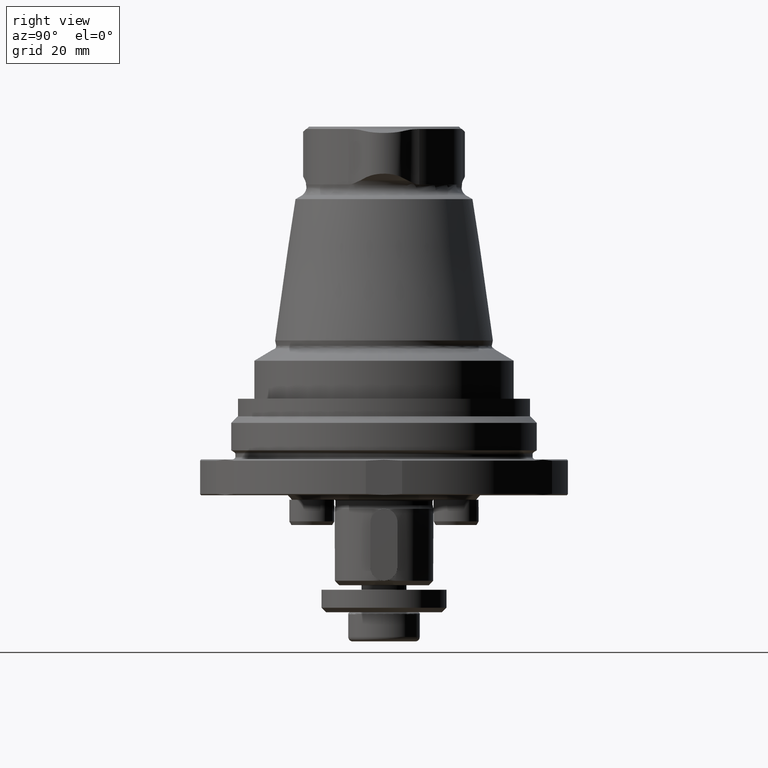
[diagram: clean part render]
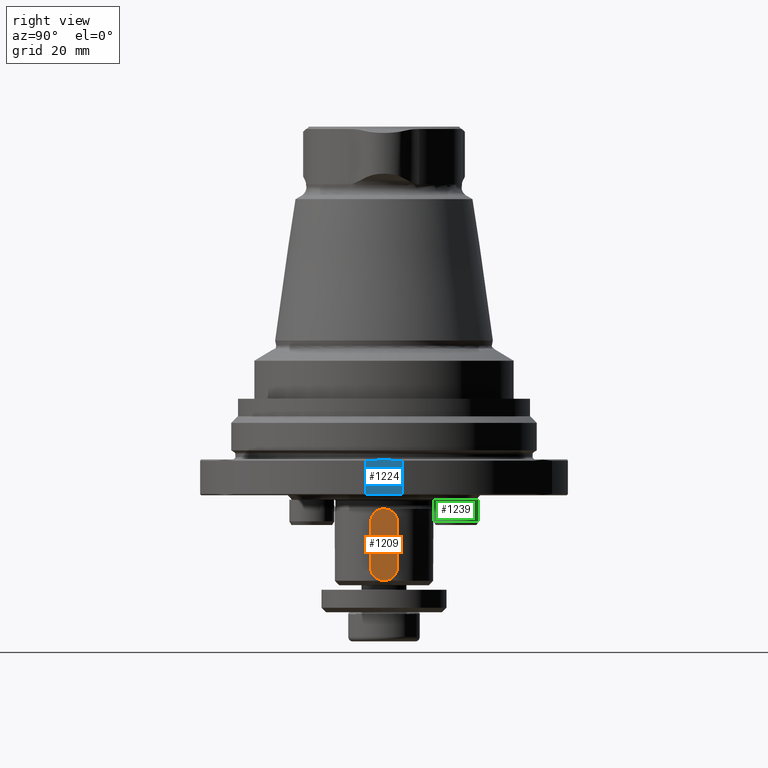
[diagram: same view with three faces highlighted in distinct colors, each labeled with its STEP entity id]
A machine part, right view with three faces highlighted in distinct colors.
Their STEP definitions:

[orange] entity #1209 — the highlighted planar face has unit normal (-1, 0, 0).
#74=LINE('',#1949,#115);
#75=LINE('',#1953,#116);
#115=VECTOR('',#1571,1000.);
#116=VECTOR('',#1576,1000.);
#173=PLANE('',#1339);
#297=ORIENTED_EDGE('',*,*,#593,.F.);
#298=ORIENTED_EDGE('',*,*,#596,.F.);
#299=ORIENTED_EDGE('',*,*,#597,.F.);
#300=ORIENTED_EDGE('',*,*,#598,.F.);
#593=EDGE_CURVE('',#749,#750,#865,.T.);
#596=EDGE_CURVE('',#751,#749,#74,.T.);
#597=EDGE_CURVE('',#752,#751,#866,.T.);
#598=EDGE_CURVE('',#750,#752,#75,.T.);
#749=VERTEX_POINT('',#1942);
#750=VERTEX_POINT('',#1944);
#751=VERTEX_POINT('',#1948);
#752=VERTEX_POINT('',#1952);
#865=CIRCLE('',#1337,2.98458959083937);
#866=CIRCLE('',#1340,3.);
#957=EDGE_LOOP('',(#297,#298,#299,#300));
#1087=FACE_BOUND('',#957,.T.);
#1209=ADVANCED_FACE('',(#1087),#173,.F.);
#1337=AXIS2_PLACEMENT_3D('',#1943,#1565,#1566);
#1339=AXIS2_PLACEMENT_3D('',#1950,#1572,#1573);
#1340=AXIS2_PLACEMENT_3D('',#1951,#1574,#1575);
#1565=DIRECTION('',(-1.,0.,0.));
#1566=DIRECTION('',(0.,2.46519032881566E-32,1.));
#1571=DIRECTION('',(0.,1.35934818459309E-16,-1.));
#1572=DIRECTION('',(-1.,0.,0.));
#1573=DIRECTION('',(0.,-2.46519032881566E-32,-1.));
#1574=DIRECTION('',(-1.,0.,0.));
#1575=DIRECTION('',(0.,-2.46519032881566E-32,-1.));
#1576=DIRECTION('',(0.,2.46519032881566E-32,1.));
#1942=CARTESIAN_POINT('',(12.6,2.96917918167874,-25.));
#1943=CARTESIAN_POINT('',(12.6,-0.0154104091606307,-25.));
#1944=CARTESIAN_POINT('',(12.6,-3.,-25.));
#1948=CARTESIAN_POINT('',(12.6,2.96917918167874,-15.4289230549709));
#1949=CARTESIAN_POINT('',(12.6,2.96917918167873,-15.4289230549709));
#1950=CARTESIAN_POINT('',(12.6,-0.0154104091606307,-25.));
#1951=CARTESIAN_POINT('',(12.6,8.67361737988404E-16,-15.));
#1952=CARTESIAN_POINT('',(12.6,-3.,-15.));
#1953=CARTESIAN_POINT('',(12.6,-3.,-25.));

[blue] entity #1224 — the highlighted planar face has unit normal (-1, 0, 0).
#26=B_SPLINE_CURVE_WITH_KNOTS('',3,(#1997,#1998,#1999,#2000),
 .UNSPECIFIED.,.F.,.F.,(4,4),(0.00557144708641946,0.0136408878602545),
 .UNSPECIFIED.);
#33=B_SPLINE_CURVE_WITH_KNOTS('',3,(#2056,#2057,#2058,#2059),
 .UNSPECIFIED.,.F.,.F.,(4,4),(0.0141550941599224,0.0221911710009365),
 .UNSPECIFIED.);
#80=LINE('',#2054,#121);
#81=LINE('',#2061,#122);
#121=VECTOR('',#1645,1000.);
#122=VECTOR('',#1648,1000.);
#178=PLANE('',#1373);
#357=ORIENTED_EDGE('',*,*,#630,.F.);
#358=ORIENTED_EDGE('',*,*,#631,.F.);
#359=ORIENTED_EDGE('',*,*,#632,.F.);
#360=ORIENTED_EDGE('',*,*,#612,.F.);
#612=EDGE_CURVE('',#765,#766,#26,.T.);
#630=EDGE_CURVE('',#780,#765,#80,.F.);
#631=EDGE_CURVE('',#781,#780,#33,.T.);
#632=EDGE_CURVE('',#766,#781,#81,.T.);
#765=VERTEX_POINT('',#1996);
#766=VERTEX_POINT('',#2001);
#780=VERTEX_POINT('',#2053);
#781=VERTEX_POINT('',#2060);
#981=EDGE_LOOP('',(#357,#358,#359,#360));
#1111=FACE_BOUND('',#981,.T.);
#1224=ADVANCED_FACE('',(#1111),#178,.F.);
#1373=AXIS2_PLACEMENT_3D('',#2055,#1646,#1647);
#1645=DIRECTION('',(2.37516272644386E-69,1.04225259501902E-17,-1.));
#1646=DIRECTION('',(-1.,1.22464679914735E-16,1.27639130439307E-33));
#1647=DIRECTION('',(2.37516272644386E-69,1.04225259501902E-17,-1.));
#1648=DIRECTION('',(2.37516272644386E-69,1.04225259501902E-17,-1.));
#1996=CARTESIAN_POINT('',(40.8,-4.04474968323131,-1.3));
#1997=CARTESIAN_POINT('',(40.8,-4.04474968323131,-1.3));
#1998=CARTESIAN_POINT('',(40.8,-1.36769555083556,-1.03590210112194));
#1999=CARTESIAN_POINT('',(40.8,1.3546399823628,-1.03461413755013));
#2000=CARTESIAN_POINT('',(40.8,4.0447496832313,-1.3));
#2001=CARTESIAN_POINT('',(40.8,4.0447496832313,-1.3));
#2053=CARTESIAN_POINT('',(40.8,-4.04474968323126,-8.70000000000001));
#2054=CARTESIAN_POINT('',(40.8,-4.04474968323131,-1.00000000000001));
#2055=CARTESIAN_POINT('',(40.8,-4.85481258759862E-15,-5.));
#2056=CARTESIAN_POINT('',(40.8,4.04474968323125,-8.7));
#2057=CARTESIAN_POINT('',(40.8,1.35463998236279,-8.96538586244987));
#2058=CARTESIAN_POINT('',(40.8,-1.36769555083555,-8.96409789887806));
#2059=CARTESIAN_POINT('',(40.8,-4.04474968323127,-8.70000000000001));
#2060=CARTESIAN_POINT('',(40.8,4.04474968323126,-8.70000000000003));
#2061=CARTESIAN_POINT('',(40.8,4.0447496832313,-1.00000000000001));

[green] entity #1239 — the highlighted cylindrical surface (bore or boss wall) has radius 5 mm, axis along (0, 0, -1).
#209=CYLINDRICAL_SURFACE('',#1395,5.);
#428=ORIENTED_EDGE('',*,*,#657,.T.);
#429=ORIENTED_EDGE('',*,*,#656,.T.);
#430=ORIENTED_EDGE('',*,*,#560,.T.);
#560=EDGE_CURVE('',#725,#724,#844,.T.);
#656=EDGE_CURVE('',#724,#725,#891,.T.);
#657=EDGE_CURVE('',#793,#793,#892,.F.);
#724=VERTEX_POINT('',#1849);
#725=VERTEX_POINT('',#1851);
#793=VERTEX_POINT('',#2131);
#844=CIRCLE('',#1297,5.);
#891=CIRCLE('',#1394,5.);
#892=CIRCLE('',#1396,5.);
#997=EDGE_LOOP('',(#428));
#998=EDGE_LOOP('',(#429,#430));
#1127=FACE_BOUND('',#997,.T.);
#1128=FACE_BOUND('',#998,.T.);
#1239=ADVANCED_FACE('',(#1127,#1128),#209,.T.);
#1297=AXIS2_PLACEMENT_3D('',#1850,#1477,#1478);
#1394=AXIS2_PLACEMENT_3D('',#2128,#1700,#1701);
#1395=AXIS2_PLACEMENT_3D('',#2129,#1702,#1703);
#1396=AXIS2_PLACEMENT_3D('',#2130,#1704,#1705);
#1477=DIRECTION('',(0.,0.,-1.));
#1478=DIRECTION('',(9.86076131526265E-32,-1.,0.));
#1700=DIRECTION('',(0.,0.,-1.));
#1701=DIRECTION('',(9.86076131526265E-32,-1.,0.));
#1702=DIRECTION('',(0.,0.,-1.));
#1703=DIRECTION('',(9.86076131526265E-32,-1.,0.));
#1704=DIRECTION('',(0.,0.,-1.));
#1705=DIRECTION('',(9.86076131526265E-32,-1.,0.));
#1849=CARTESIAN_POINT('',(-2.57144602259716,20.3380841121495,-10.));
#1850=CARTESIAN_POINT('',(0.,16.05,-10.));
#1851=CARTESIAN_POINT('',(2.57144602259716,20.3380841121495,-10.));
#2128=CARTESIAN_POINT('',(0.,16.05,-10.));
#2129=CARTESIAN_POINT('',(0.,16.05,-70.));
#2130=CARTESIAN_POINT('',(0.,16.05,-14.8));
#2131=CARTESIAN_POINT('',(4.93038065763132E-31,11.05,-14.8));